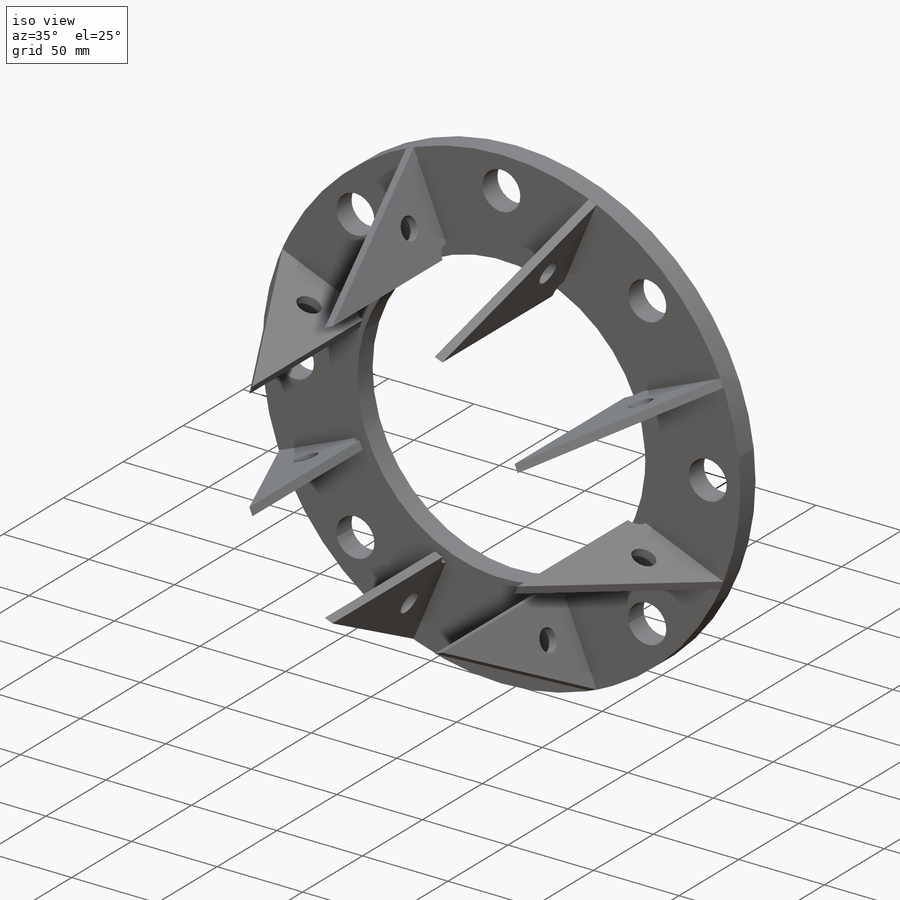
[diagram: iso view]
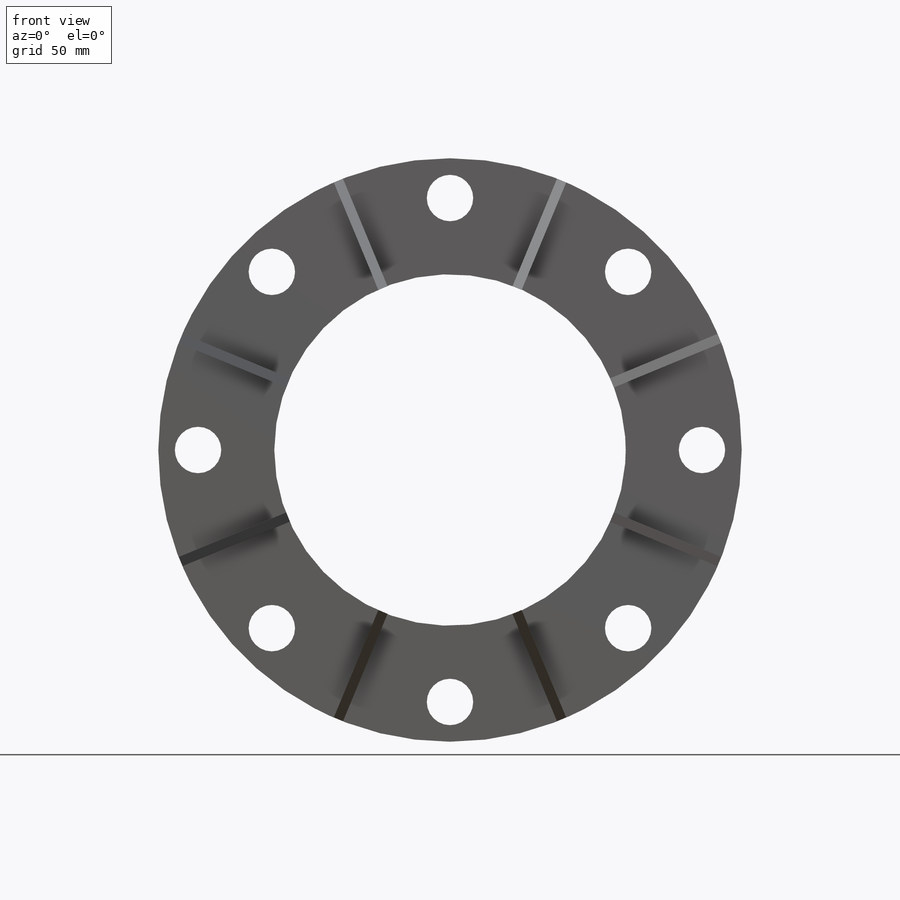
[diagram: front view]
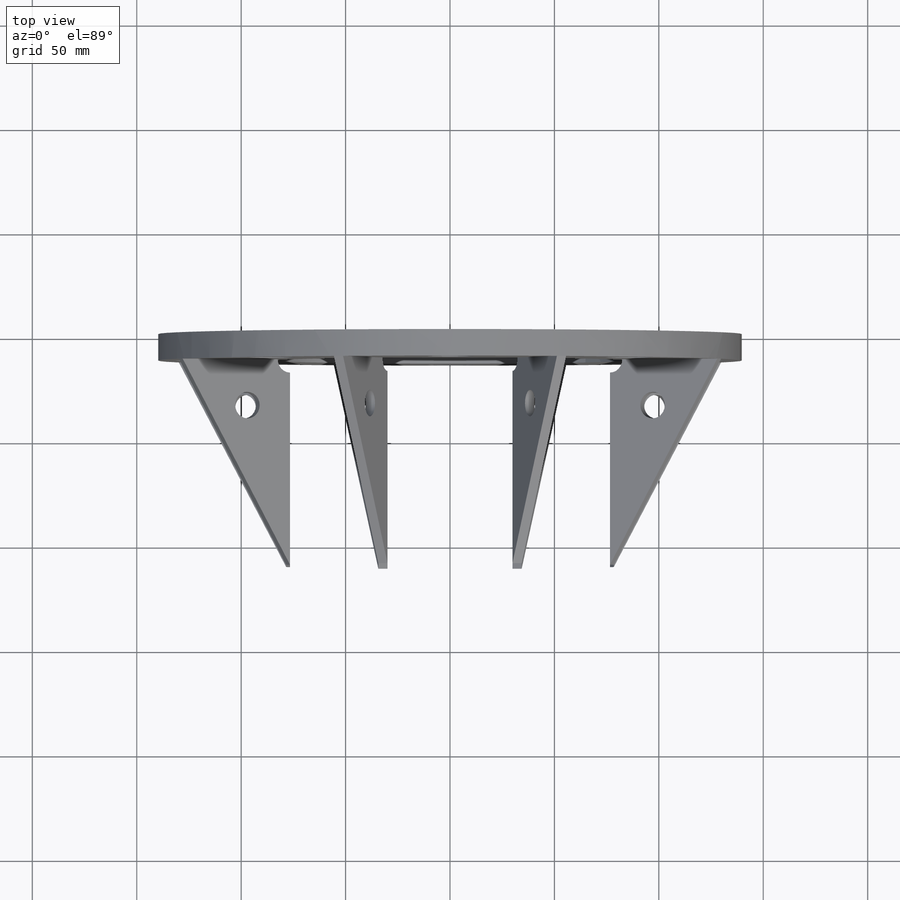
[diagram: top view]
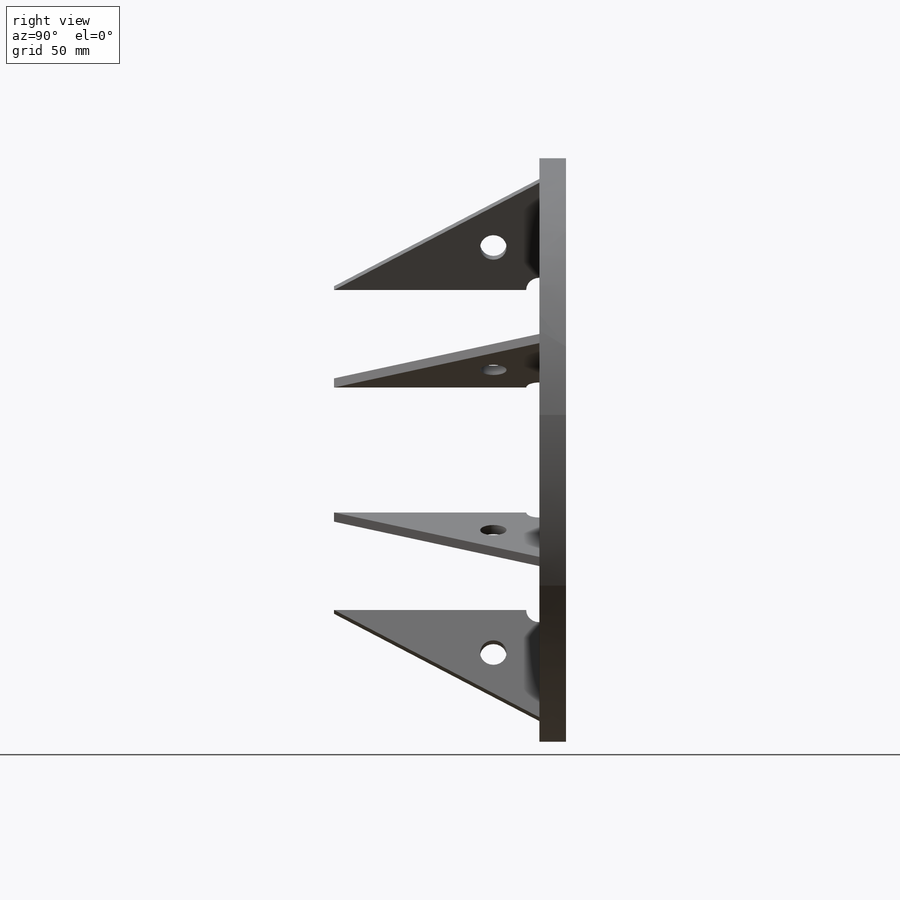
[diagram: right view]
SOLIDWORKS PART (.sldprt)
format: sldprt  version: not decoded by parser v0  size: 630,272 bytes
history: native  units: mm
features: sketch x7, pattern_circular x4, extrude x3, cut_extrude x2, material x1, hole x1 (+16 scaffold rows collapsed)
feature tree (34):
  scaffold x16  (default folders/planes/origin — collapsed)
  material  "Material <not specified>"
  sketch  "Sketch1"  dims[D1=168.275mm D2=279.4mm]
  extrude  "Extrude1"  Depth=12.7mm
  hole  " (0.625) Diameter Hole1"  Diameter=22.225mm Depth=25.4mm
  sketch  "3DSketch1"  dims[c1.D1=~12.87655mm c1.D2=12.7mm c2.D1=120.65mm]
  sketch  "Sketch2"  dims[hole-wizard template sketch: 46 standard entries collapsed; hole parameters kept: c15.Hole Dia.=22.225mm c15.Hole Depth=25.4mm c15.D3=~14.816244mm c15.Drill Angle=118.0deg]
  pattern_circular  "CirPattern1"  Count=4 Angle=360deg
  pattern_circular  "CirPattern2"  Count=8 Angle=360deg
  sketch  "Sketch4"  dims[c1.D1=~60.516468mm c2.D1=45.0deg c3.D1=~31.551397mm c4.D1=45.0deg c4.D2=12.7mm c4.D3=~9.932368mm]
  extrude  "Extrude2"  Depth=55.5625mm
  sketch  "Sketch5"
  cut_extrude  "Extrude3"  [1 undecoded]
  pattern_circular  "CirPattern3"  Count=4 Angle=360deg
  sketch  "Sketch6"  dims[c1.D1=139.7mm c2.D1=22.5deg c3.D1=~51.382845mm c4.D1=22.5deg c4.D2=4.7625mm]
  extrude  "Extrude4"  Depth=98.345625mm
  sketch  "Sketch8"  dims[D1=6.35mm D2=19.05mm]
  cut_extrude  "Extrude5"  [1 undecoded]
  pattern_circular  "CirPattern4"  Count=8 Angle=360deg
decode coverage: 14 of 17 modeling features carry decoded parameters
note: ~ marks probable driven/reference dimensions
note: 2 parameter values undecoded
note: suppression state not decoded; provenance and decode notes live in map.json
